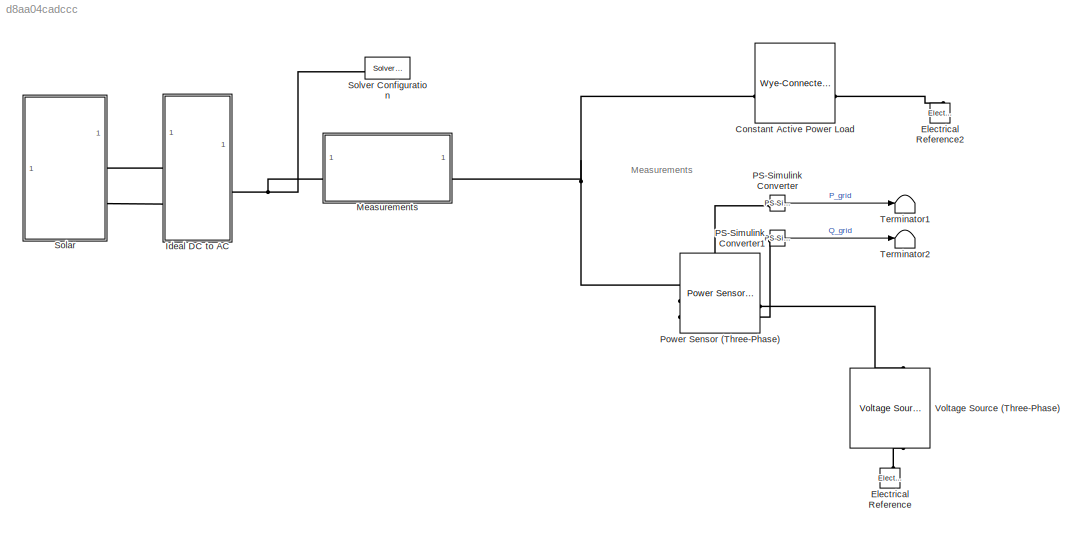
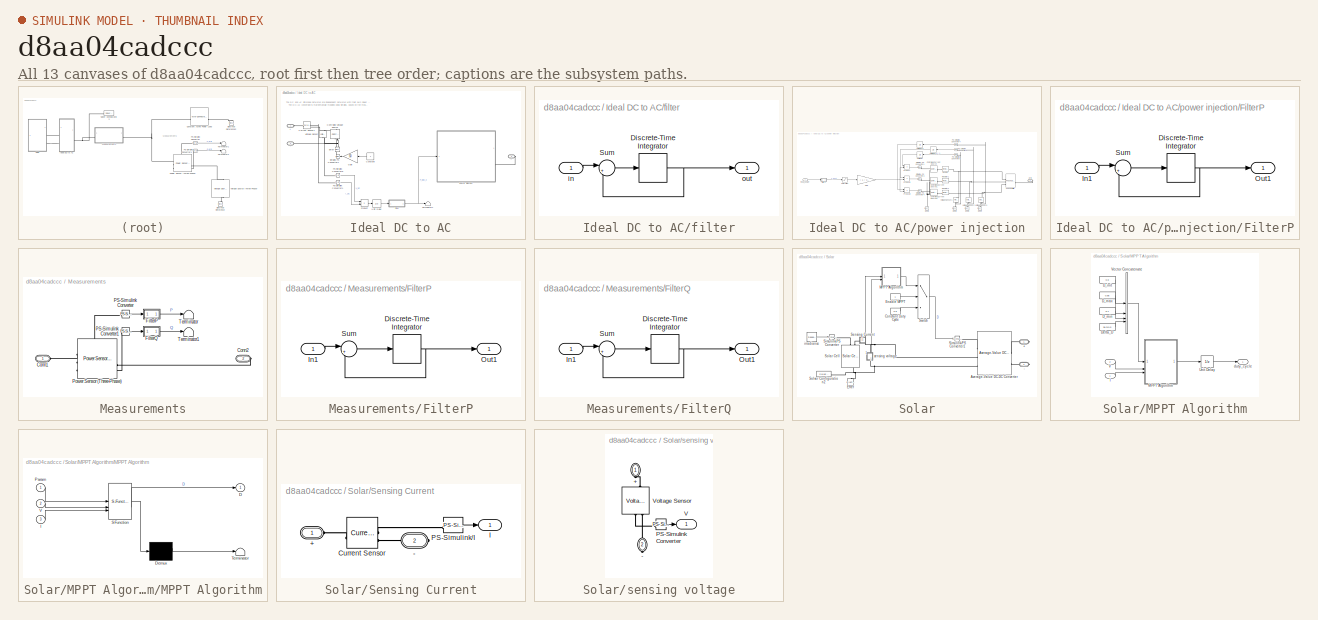
[diagram: thumbnail index - all 13 canvases of the model, root first then tree order]
MODEL slx_d8aa04cadccc
KIND model
CONFIG AbsTol = auto
CONFIG EnableMultiTasking = off
CONFIG FixedStep = auto
CONFIG MaxStep = auto
CONFIG MinStep = auto
CONFIG RelTol = 1e-3
CONFIG SampleTimeConstraint = Unconstrained
CONFIG SolverName = VariableStepAuto
CONFIG StartFcn = learning.simulink.modelCallbacks.startFunction(gcs)
CONFIG StartTime = 0.0
CONFIG StopFcn = learning.simulink.modelCallbacks.stopFunction(gcs);
CONFIG StopTime = 24
WORKSPACE source: mxarray member
WORKSPACE courseObject: object (value not decoded)
BLOCK [Reference] Constant Active Power Load  REF=ee_lib/Passive/RLC Assemblies/Wye-Connected Load
  SourceBlock = ee_lib/Passive/RLC Assemblies/Wye-Connected Load
  SourceType = Wye-Connected Load
BLOCK [Reference] Electrical Reference  REF=fl_lib/Electrical/Electrical Elements/Electrical Reference
  NameLocation = right
  SourceBlock = fl_lib/Electrical/Electrical Elements/Electrical Reference
  SourceType = Electrical Reference
BLOCK [Reference] Electrical Reference2  REF=fl_lib/Electrical/Electrical Elements/Electrical Reference
  NameLocation = right
  SourceBlock = fl_lib/Electrical/Electrical Elements/Electrical Reference
  SourceType = Electrical Reference
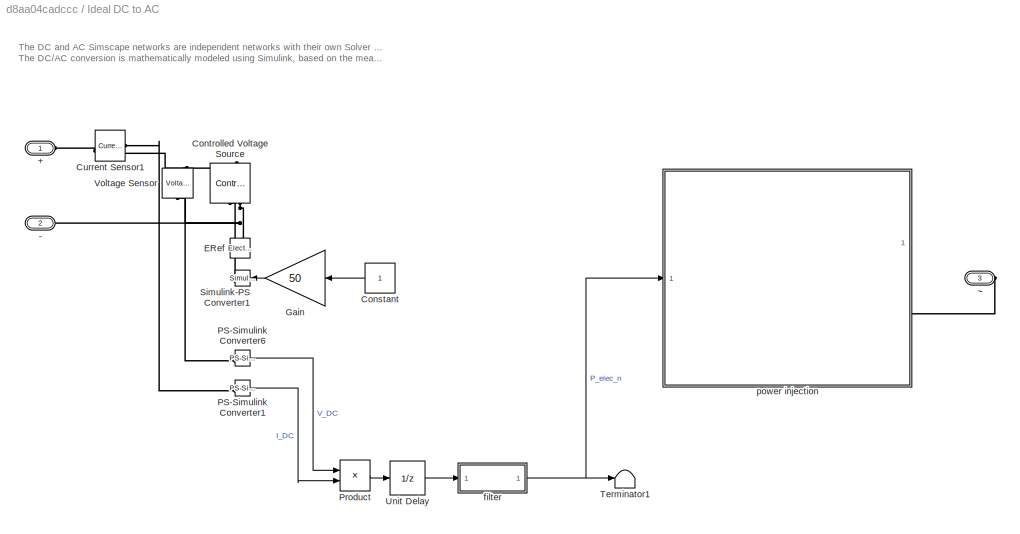
BLOCK [SubSystem] Ideal DC to AC
BLOCK [PMIOPort] Ideal DC to AC/+
  Side = Left
BLOCK [PMIOPort] Ideal DC to AC/-
  Port = 2
  Side = Left
BLOCK [Constant] Ideal DC to AC/Constant
  NameLocation = top
BLOCK [Reference] Ideal DC to AC/Controlled Voltage Source  REF=fl_lib/Electrical/Electrical Sources/Controlled Voltage
Source
  NameLocation = right
  SourceBlock = fl_lib/Electrical/Electrical Sources/Controlled Voltage\nSource
  SourceType = Controlled Voltage\nSource
BLOCK [Reference] Ideal DC to AC/Current Sensor1  REF=fl_lib/Electrical/Electrical Sensors/Current Sensor
  SourceBlock = fl_lib/Electrical/Electrical Sensors/Current Sensor
  SourceType = Current Sensor
BLOCK [Reference] Ideal DC to AC/ERef  REF=fl_lib/Electrical/Electrical Elements/Electrical Reference
  NameLocation = right
  SourceBlock = fl_lib/Electrical/Electrical Elements/Electrical Reference
  SourceType = Electrical Reference
BLOCK [Gain] Ideal DC to AC/Gain
  Gain = 50
BLOCK [Reference] Ideal DC to AC/PS-Simulink Converter1  REF=nesl_utility/PS-Simulink
Converter
  SourceBlock = nesl_utility/PS-Simulink\nConverter
  SourceType = PS-Simulink\nConverter
BLOCK [Reference] Ideal DC to AC/PS-Simulink Converter6  REF=nesl_utility/PS-Simulink
Converter
  SourceBlock = nesl_utility/PS-Simulink\nConverter
  SourceType = PS-Simulink\nConverter
BLOCK [Product] Ideal DC to AC/Product
BLOCK [Reference] Ideal DC to AC/Simulink-PS Converter1  REF=nesl_utility/Simulink-PS
Converter
  NameLocation = top
  SourceBlock = nesl_utility/Simulink-PS\nConverter
  SourceType = Simulink-PS\nConverter
BLOCK [Terminator] Ideal DC to AC/Terminator1
BLOCK [UnitDelay] Ideal DC to AC/Unit Delay
  HasFrameUpgradeWarning = on
  SampleTime = -1
BLOCK [Reference] Ideal DC to AC/Voltage Sensor  REF=fl_lib/Electrical/Electrical Sensors/Voltage Sensor
  NameLocation = right
  SourceBlock = fl_lib/Electrical/Electrical Sensors/Voltage Sensor
  SourceType = Voltage Sensor
BLOCK [SubSystem] Ideal DC to AC/filter
BLOCK [DiscreteIntegrator] Ideal DC to AC/filter/Discrete-Time Integrator
  ICPrevOutput = DiscIntNeverNeededParam
  ICPrevScaledInput = DiscIntNeverNeededParam
  InitialConditionSetting = Auto
  SampleTime = -1
  gainval = 20
BLOCK [Sum] Ideal DC to AC/filter/Sum
  Inputs = |+-
BLOCK [Inport] Ideal DC to AC/filter/in
BLOCK [Outport] Ideal DC to AC/filter/out
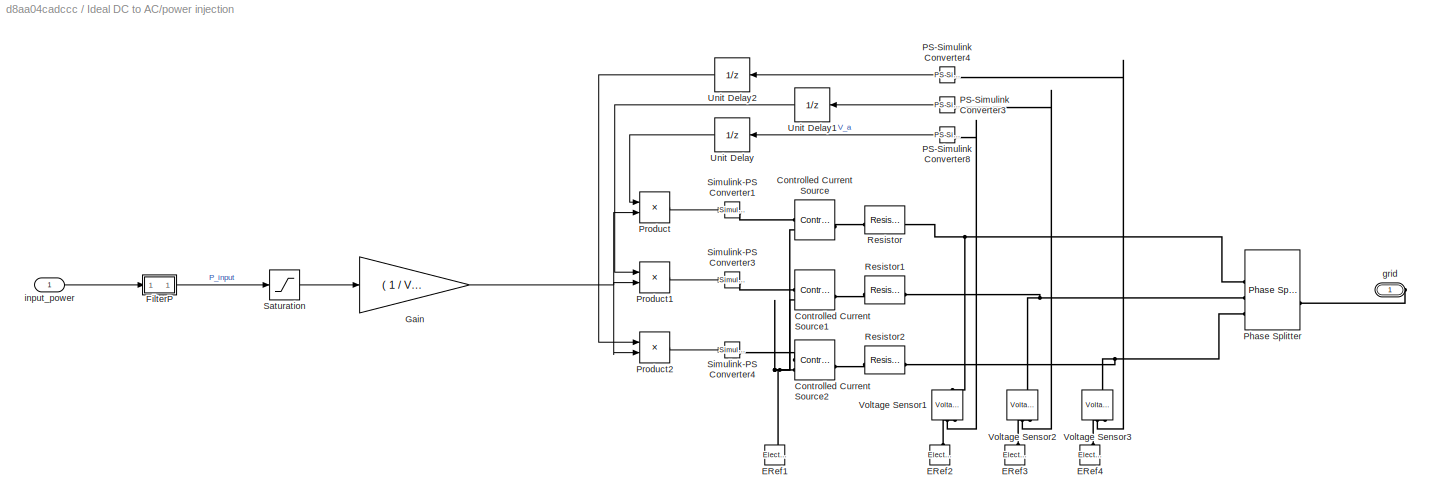
BLOCK [SubSystem] Ideal DC to AC/power injection
BLOCK [Reference] Ideal DC to AC/power injection/Controlled Current Source  REF=fl_lib/Electrical/Electrical Sources/Controlled Current
Source
  SourceBlock = fl_lib/Electrical/Electrical Sources/Controlled Current\nSource
  SourceType = Controlled Current\nSource
BLOCK [Reference] Ideal DC to AC/power injection/Controlled Current Source1  REF=fl_lib/Electrical/Electrical Sources/Controlled Current
Source
  SourceBlock = fl_lib/Electrical/Electrical Sources/Controlled Current\nSource
  SourceType = Controlled Current\nSource
BLOCK [Reference] Ideal DC to AC/power injection/Controlled Current Source2  REF=fl_lib/Electrical/Electrical Sources/Controlled Current
Source
  SourceBlock = fl_lib/Electrical/Electrical Sources/Controlled Current\nSource
  SourceType = Controlled Current\nSource
BLOCK [Reference] Ideal DC to AC/power injection/ERef1  REF=fl_lib/Electrical/Electrical Elements/Electrical Reference
  NameLocation = right
  SourceBlock = fl_lib/Electrical/Electrical Elements/Electrical Reference
  SourceType = Electrical Reference
BLOCK [Reference] Ideal DC to AC/power injection/ERef2  REF=fl_lib/Electrical/Electrical Elements/Electrical Reference
  NameLocation = right
  SourceBlock = fl_lib/Electrical/Electrical Elements/Electrical Reference
  SourceType = Electrical Reference
BLOCK [Reference] Ideal DC to AC/power injection/ERef3  REF=fl_lib/Electrical/Electrical Elements/Electrical Reference
  NameLocation = right
  SourceBlock = fl_lib/Electrical/Electrical Elements/Electrical Reference
  SourceType = Electrical Reference
BLOCK [Reference] Ideal DC to AC/power injection/ERef4  REF=fl_lib/Electrical/Electrical Elements/Electrical Reference
  NameLocation = right
  SourceBlock = fl_lib/Electrical/Electrical Elements/Electrical Reference
  SourceType = Electrical Reference
BLOCK [SubSystem] Ideal DC to AC/power injection/FilterP
BLOCK [DiscreteIntegrator] Ideal DC to AC/power injection/FilterP/Discrete-Time Integrator
  ICPrevOutput = DiscIntNeverNeededParam
  ICPrevScaledInput = DiscIntNeverNeededParam
  InitialConditionSetting = Auto
  SampleTime = -1
  gainval = 20
BLOCK [Inport] Ideal DC to AC/power injection/FilterP/In1
BLOCK [Outport] Ideal DC to AC/power injection/FilterP/Out1
BLOCK [Sum] Ideal DC to AC/power injection/FilterP/Sum
  Inputs = |+-
BLOCK [Gain] Ideal DC to AC/power injection/Gain
  Gain = ( 1 / V_ref ) ^ 2
BLOCK [Reference] Ideal DC to AC/power injection/PS-Simulink Converter3  REF=nesl_utility/PS-Simulink
Converter
  NameLocation = top
  SourceBlock = nesl_utility/PS-Simulink\nConverter
  SourceType = PS-Simulink\nConverter
BLOCK [Reference] Ideal DC to AC/power injection/PS-Simulink Converter4  REF=nesl_utility/PS-Simulink
Converter
  NameLocation = top
  SourceBlock = nesl_utility/PS-Simulink\nConverter
  SourceType = PS-Simulink\nConverter
BLOCK [Reference] Ideal DC to AC/power injection/PS-Simulink Converter8  REF=nesl_utility/PS-Simulink
Converter
  NameLocation = top
  SourceBlock = nesl_utility/PS-Simulink\nConverter
  SourceType = PS-Simulink\nConverter
BLOCK [Reference] Ideal DC to AC/power injection/Phase Splitter  REF=ee_lib/Connectors &
References/Phase Splitter
  SourceBlock = ee_lib/Connectors &\nReferences/Phase Splitter
  SourceType = Phase Splitter
BLOCK [Product] Ideal DC to AC/power injection/Product
BLOCK [Product] Ideal DC to AC/power injection/Product1
BLOCK [Product] Ideal DC to AC/power injection/Product2
BLOCK [Reference] Ideal DC to AC/power injection/Resistor  REF=fl_lib/Electrical/Electrical Elements/Resistor
  SourceBlock = fl_lib/Electrical/Electrical Elements/Resistor
  SourceType = Resistor
BLOCK [Reference] Ideal DC to AC/power injection/Resistor1  REF=fl_lib/Electrical/Electrical Elements/Resistor
  SourceBlock = fl_lib/Electrical/Electrical Elements/Resistor
  SourceType = Resistor
BLOCK [Reference] Ideal DC to AC/power injection/Resistor2  REF=fl_lib/Electrical/Electrical Elements/Resistor
  SourceBlock = fl_lib/Electrical/Electrical Elements/Resistor
  SourceType = Resistor
BLOCK [Saturate] Ideal DC to AC/power injection/Saturation
  LowerLimit = 0
  UpperLimit = P_nom
BLOCK [Reference] Ideal DC to AC/power injection/Simulink-PS Converter1  REF=nesl_utility/Simulink-PS
Converter
  SourceBlock = nesl_utility/Simulink-PS\nConverter
  SourceType = Simulink-PS\nConverter
BLOCK [Reference] Ideal DC to AC/power injection/Simulink-PS Converter3  REF=nesl_utility/Simulink-PS
Converter
  SourceBlock = nesl_utility/Simulink-PS\nConverter
  SourceType = Simulink-PS\nConverter
BLOCK [Reference] Ideal DC to AC/power injection/Simulink-PS Converter4  REF=nesl_utility/Simulink-PS
Converter
  SourceBlock = nesl_utility/Simulink-PS\nConverter
  SourceType = Simulink-PS\nConverter
BLOCK [UnitDelay] Ideal DC to AC/power injection/Unit Delay
  HasFrameUpgradeWarning = on
  SampleTime = -1
BLOCK [UnitDelay] Ideal DC to AC/power injection/Unit Delay1
  HasFrameUpgradeWarning = on
  SampleTime = -1
BLOCK [UnitDelay] Ideal DC to AC/power injection/Unit Delay2
  HasFrameUpgradeWarning = on
  SampleTime = -1
BLOCK [Reference] Ideal DC to AC/power injection/Voltage Sensor1  REF=fl_lib/Electrical/Electrical Sensors/Voltage Sensor
  NameLocation = right
  SourceBlock = fl_lib/Electrical/Electrical Sensors/Voltage Sensor
  SourceType = Voltage Sensor
BLOCK [Reference] Ideal DC to AC/power injection/Voltage Sensor2  REF=fl_lib/Electrical/Electrical Sensors/Voltage Sensor
  NameLocation = right
  SourceBlock = fl_lib/Electrical/Electrical Sensors/Voltage Sensor
  SourceType = Voltage Sensor
BLOCK [Reference] Ideal DC to AC/power injection/Voltage Sensor3  REF=fl_lib/Electrical/Electrical Sensors/Voltage Sensor
  NameLocation = right
  SourceBlock = fl_lib/Electrical/Electrical Sensors/Voltage Sensor
  SourceType = Voltage Sensor
BLOCK [PMIOPort] Ideal DC to AC/power injection/grid
  Side = Right
BLOCK [Inport] Ideal DC to AC/power injection/input_power
BLOCK [PMIOPort] Ideal DC to AC/~
  Port = 3
  Side = Right
BLOCK [SubSystem] Measurements
BLOCK [PMIOPort] Measurements/Conn1
  Side = Left
BLOCK [PMIOPort] Measurements/Conn2
  Port = 2
  Side = Right
BLOCK [SubSystem] Measurements/FilterP
BLOCK [DiscreteIntegrator] Measurements/FilterP/Discrete-Time Integrator
  ICPrevOutput = DiscIntNeverNeededParam
  ICPrevScaledInput = DiscIntNeverNeededParam
  InitialConditionSetting = Auto
  SampleTime = -1
  gainval = 20
BLOCK [Inport] Measurements/FilterP/In1
BLOCK [Outport] Measurements/FilterP/Out1
BLOCK [Sum] Measurements/FilterP/Sum
  Inputs = |+-
BLOCK [SubSystem] Measurements/FilterQ
BLOCK [DiscreteIntegrator] Measurements/FilterQ/Discrete-Time Integrator
  ICPrevOutput = DiscIntNeverNeededParam
  ICPrevScaledInput = DiscIntNeverNeededParam
  InitialConditionSetting = Auto
  SampleTime = -1
  gainval = 20
BLOCK [Inport] Measurements/FilterQ/In1
BLOCK [Outport] Measurements/FilterQ/Out1
BLOCK [Sum] Measurements/FilterQ/Sum
  Inputs = |+-
BLOCK [Reference] Measurements/PS-Simulink Converter  REF=nesl_utility/PS-Simulink
Converter
  SourceBlock = nesl_utility/PS-Simulink\nConverter
  SourceType = PS-Simulink\nConverter
BLOCK [Reference] Measurements/PS-Simulink Converter1  REF=nesl_utility/PS-Simulink
Converter
  SourceBlock = nesl_utility/PS-Simulink\nConverter
  SourceType = PS-Simulink\nConverter
BLOCK [Reference] Measurements/Power Sensor (Three-Phase)  REF=ee_lib/Sensors &
Transducers/Power Sensor
(Three-Phase)
  SourceBlock = ee_lib/Sensors &\nTransducers/Power Sensor\n(Three-Phase)
  SourceType = Power Sensor\n(Three-Phase)
BLOCK [Terminator] Measurements/Terminator
BLOCK [Terminator] Measurements/Terminator1
BLOCK [Reference] PS-Simulink Converter  REF=nesl_utility/PS-Simulink
Converter
  SourceBlock = nesl_utility/PS-Simulink\nConverter
  SourceType = PS-Simulink\nConverter
BLOCK [Reference] PS-Simulink Converter1  REF=nesl_utility/PS-Simulink
Converter
  SourceBlock = nesl_utility/PS-Simulink\nConverter
  SourceType = PS-Simulink\nConverter
BLOCK [Reference] Power Sensor (Three-Phase)  REF=ee_lib/Sensors &
Transducers/Power Sensor
(Three-Phase)
  SourceBlock = ee_lib/Sensors &\nTransducers/Power Sensor\n(Three-Phase)
  SourceType = Power Sensor\n(Three-Phase)
BLOCK [SubSystem] Solar
BLOCK [PMIOPort] Solar/+
  Side = Right
BLOCK [PMIOPort] Solar/-
  Port = 2
  Side = Right
BLOCK [Reference] Solar/Average-Value DC-DC Converter  REF=ee_lib/Semiconductors &
Converters/Converters/Average-Value DC-DC
Converter
  SourceBlock = ee_lib/Semiconductors &\nConverters/Converters/Average-Value DC-DC\nConverter
  SourceType = Average-Value DC-DC\nConverter
BLOCK [Constant] Solar/Constant Duty Cycle
  Value = 0.8
BLOCK [Reference] Solar/ERef  REF=fl_lib/Electrical/Electrical Elements/Electrical Reference
  NameLocation = right
  SourceBlock = fl_lib/Electrical/Electrical Elements/Electrical Reference
  SourceType = Electrical Reference
BLOCK [Constant] Solar/Enable MPPT
BLOCK [SubSystem] Solar/MPPT Algorithm
BLOCK [Constant] Solar/MPPT Algorithm/D_init
  Value = 0.8
BLOCK [Constant] Solar/MPPT Algorithm/D_max
  Value = 0.85
BLOCK [Constant] Solar/MPPT Algorithm/D_min
  Value = 0.1
BLOCK [Constant] Solar/MPPT Algorithm/Delta_D
  Value = 3e-3*0.5
BLOCK [Inport] Solar/MPPT Algorithm/I
BLOCK [SubSystem] Solar/MPPT Algorithm/MPPT Algorithm
  ErrorFcn = Stateflow.Translate.translate
  PermitHierarchicalResolution = ExplicitOnly
  SFBlockType = MATLAB Function
  SystemSampleTime = Ts
  TreatAsGroupedWhenPropagatingVariantConditions = off
BLOCK [Demux] Solar/MPPT Algorithm/MPPT Algorithm/ Demux 
  Outputs = 1
BLOCK [S-Function] Solar/MPPT Algorithm/MPPT Algorithm/ SFunction 
  EnableBusSupport = on
  FunctionName = sf_sfun
  PortCounts = [3 2]
  SFcnIsStateOwnerBlock = off
  SFunctionDeploymentMode = off
  Tag = Stateflow S-Function 1
BLOCK [Terminator] Solar/MPPT Algorithm/MPPT Algorithm/ Terminator 
BLOCK [Outport] Solar/MPPT Algorithm/MPPT Algorithm/D
  VectorParamsAs1DForOutWhenUnconnected = off
BLOCK [Inport] Solar/MPPT Algorithm/MPPT Algorithm/I
  Port = 3
BLOCK [Inport] Solar/MPPT Algorithm/MPPT Algorithm/Param
BLOCK [Inport] Solar/MPPT Algorithm/MPPT Algorithm/V
  Port = 2
BLOCK [UnitDelay] Solar/MPPT Algorithm/Unit Delay
  HasFrameUpgradeWarning = on
  InitialCondition = 0.85
  SampleTime = -1
BLOCK [Inport] Solar/MPPT Algorithm/V
  Port = 2
BLOCK [Concatenate] Solar/MPPT Algorithm/Vector Concatenate
  NumInputs = 4
BLOCK [Outport] Solar/MPPT Algorithm/duty_cycle
BLOCK [SubSystem] Solar/Sensing Current
  PortSchema = {"entries":[{"content":{"sides":[{"content":{"connectorIds":["LConn1"]},"type":"ConnectorPlacement.EquallySpacedRectSide","uuid":"08eaf192-3836-4d70-9f6a-c3aee0977ea6"},{"content":{"connectorIds":["RConn1"],"side":"RIGHT"},"type":"ConnectorPlacement.EquallySpacedRectSide","uuid":"69615d36-c1bf-4d31-b3e4-77c73286e7c7"},{"content":{"connectorIds":["Out1"],"side":"TOP"},"type":"ConnectorPlacement.Equ...<+251ch>
BLOCK [PMIOPort] Solar/Sensing Current/+
  Side = Left
BLOCK [PMIOPort] Solar/Sensing Current/-
  Port = 2
  Side = Right
BLOCK [Reference] Solar/Sensing Current/Current Sensor  REF=fl_lib/Electrical/Electrical Sensors/Current Sensor
  SourceBlock = fl_lib/Electrical/Electrical Sensors/Current Sensor
  SourceType = Current Sensor
BLOCK [Outport] Solar/Sensing Current/I
BLOCK [Reference] Solar/Sensing Current/PS-Simulink//I  REF=nesl_utility/PS-Simulink
Converter
  SourceBlock = nesl_utility/PS-Simulink\nConverter
  SourceType = PS-Simulink\nConverter
BLOCK [Reference] Solar/Simulink-PS Converter  REF=nesl_utility/Simulink-PS
Converter
  SourceBlock = nesl_utility/Simulink-PS\nConverter
  SourceType = Simulink-PS\nConverter
BLOCK [Reference] Solar/Simulink-PS Converter1  REF=nesl_utility/Simulink-PS
Converter
  SourceBlock = nesl_utility/Simulink-PS\nConverter
  SourceType = Simulink-PS\nConverter
BLOCK [Reference] Solar/Solar Cell  REF=ee_lib/Sources/Solar Cell
  NameLocation = left
  SourceBlock = ee_lib/Sources/Solar Cell
  SourceType = Solar Cell
BLOCK [Reference] Solar/Solver Configuration2  REF=nesl_utility/Solver
Configuration
  SourceBlock = nesl_utility/Solver\nConfiguration
  SourceType = Solver\nConfiguration
BLOCK [Switch] Solar/Switch
  Criteria = u2 > Threshold
  InputSameDT = off
  SaturateOnIntegerOverflow = off
BLOCK [Reference] Solar/irradiance   REF=simulink/Sources/Repeating
Sequence
Interpolated
  NameLocation = top
  SourceBlock = simulink/Sources/Repeating\nSequence\nInterpolated
  SourceType = Repeating Sequence Interpolated
BLOCK [SubSystem] Solar/sensing voltage
  NameLocation = left
  PortSchema = {"entries":[{"content":{"sides":[{"content":{"connectorIds":["LConn1"]},"type":"ConnectorPlacement.EquallySpacedRectSide","uuid":"08eaf192-3836-4d70-9f6a-c3aee0977ea6"},{"content":{"connectorIds":["RConn1"],"side":"RIGHT"},"type":"ConnectorPlacement.EquallySpacedRectSide","uuid":"69615d36-c1bf-4d31-b3e4-77c73286e7c7"},{"content":{"connectorIds":[],"side":"TOP"},"type":"ConnectorPlacement.EquallySp...<+395ch>
BLOCK [PMIOPort] Solar/sensing voltage/+
  NameLocation = left
  Side = Left
BLOCK [PMIOPort] Solar/sensing voltage/-
  NameLocation = left
  Port = 2
  Side = Right
BLOCK [Reference] Solar/sensing voltage/PS-Simulink Converter  REF=nesl_utility/PS-Simulink
Converter
  SourceBlock = nesl_utility/PS-Simulink\nConverter
  SourceType = PS-Simulink\nConverter
BLOCK [Outport] Solar/sensing voltage/V
BLOCK [Reference] Solar/sensing voltage/Voltage Sensor  REF=fl_lib/Electrical/Electrical Sensors/Voltage Sensor
  NameLocation = right
  SourceBlock = fl_lib/Electrical/Electrical Sensors/Voltage Sensor
  SourceType = Voltage Sensor
BLOCK [Reference] Solver Configuration  REF=nesl_utility/Solver
Configuration
  SourceBlock = nesl_utility/Solver\nConfiguration
  SourceType = Solver\nConfiguration
BLOCK [Terminator] Terminator1
BLOCK [Terminator] Terminator2
BLOCK [Reference] Voltage Source (Three-Phase)  REF=ee_lib/Sources/Voltage
Source
(Three-Phase)
  NameLocation = right
  SourceBlock = ee_lib/Sources/Voltage\nSource\n(Three-Phase)
  SourceType = Voltage\nSource\n(Three-Phase)
ANNOTATION (root): Measurements
ANNOTATION Ideal DC to AC: The DC and AC Simscape networks are independent networks with their own Solver Configuration blocks. The DC/AC conversion is mathematically modeled using Simulink, based on the measured Simscape values.
LINE Ideal DC to AC/Constant:1 -> Ideal DC to AC/Gain:1
LINE Ideal DC to AC/Gain:1 -> Ideal DC to AC/Simulink-PS Converter1:1
LINE Ideal DC to AC/PS-Simulink Converter1:1 -> Ideal DC to AC/Product:2
LINE Ideal DC to AC/PS-Simulink Converter6:1 -> Ideal DC to AC/Product:1
LINE Ideal DC to AC/Product:1 -> Ideal DC to AC/Unit Delay:1
LINE Ideal DC to AC/Unit Delay:1 -> Ideal DC to AC/filter:1
NET Ideal DC to AC/filter/Discrete-Time Integrator:1 -> Ideal DC to AC/filter/Sum:2, Ideal DC to AC/filter/out:1
LINE Ideal DC to AC/filter/Sum:1 -> Ideal DC to AC/filter/Discrete-Time Integrator:1
LINE Ideal DC to AC/filter/in:1 -> Ideal DC to AC/filter/Sum:1
NET Ideal DC to AC/filter:1 -> Ideal DC to AC/Terminator1:1, Ideal DC to AC/power injection:1
NET Ideal DC to AC/power injection/FilterP/Discrete-Time Integrator:1 -> Ideal DC to AC/power injection/FilterP/Out1:1, Ideal DC to AC/power injection/FilterP/Sum:2
LINE Ideal DC to AC/power injection/FilterP/In1:1 -> Ideal DC to AC/power injection/FilterP/Sum:1
LINE Ideal DC to AC/power injection/FilterP/Sum:1 -> Ideal DC to AC/power injection/FilterP/Discrete-Time Integrator:1
LINE Ideal DC to AC/power injection/FilterP:1 -> Ideal DC to AC/power injection/Saturation:1
NET Ideal DC to AC/power injection/Gain:1 -> Ideal DC to AC/power injection/Product1:2, Ideal DC to AC/power injection/Product2:2, Ideal DC to AC/power injection/Product:2
LINE Ideal DC to AC/power injection/PS-Simulink Converter3:1 -> Ideal DC to AC/power injection/Unit Delay1:1
LINE Ideal DC to AC/power injection/PS-Simulink Converter4:1 -> Ideal DC to AC/power injection/Unit Delay2:1
LINE Ideal DC to AC/power injection/PS-Simulink Converter8:1 -> Ideal DC to AC/power injection/Unit Delay:1
LINE Ideal DC to AC/power injection/Product1:1 -> Ideal DC to AC/power injection/Simulink-PS Converter3:1
LINE Ideal DC to AC/power injection/Product2:1 -> Ideal DC to AC/power injection/Simulink-PS Converter4:1
LINE Ideal DC to AC/power injection/Product:1 -> Ideal DC to AC/power injection/Simulink-PS Converter1:1
LINE Ideal DC to AC/power injection/Saturation:1 -> Ideal DC to AC/power injection/Gain:1
LINE Ideal DC to AC/power injection/Unit Delay1:1 -> Ideal DC to AC/power injection/Product1:1
LINE Ideal DC to AC/power injection/Unit Delay2:1 -> Ideal DC to AC/power injection/Product2:1
LINE Ideal DC to AC/power injection/Unit Delay:1 -> Ideal DC to AC/power injection/Product:1
LINE Ideal DC to AC/power injection/input_power:1 -> Ideal DC to AC/power injection/FilterP:1
NET Measurements/FilterP/Discrete-Time Integrator:1 -> Measurements/FilterP/Out1:1, Measurements/FilterP/Sum:2
LINE Measurements/FilterP/In1:1 -> Measurements/FilterP/Sum:1
LINE Measurements/FilterP/Sum:1 -> Measurements/FilterP/Discrete-Time Integrator:1
LINE Measurements/FilterP:1 -> Measurements/Terminator:1
NET Measurements/FilterQ/Discrete-Time Integrator:1 -> Measurements/FilterQ/Out1:1, Measurements/FilterQ/Sum:2
LINE Measurements/FilterQ/In1:1 -> Measurements/FilterQ/Sum:1
LINE Measurements/FilterQ/Sum:1 -> Measurements/FilterQ/Discrete-Time Integrator:1
LINE Measurements/FilterQ:1 -> Measurements/Terminator1:1
LINE Measurements/PS-Simulink Converter1:1 -> Measurements/FilterQ:1
LINE Measurements/PS-Simulink Converter:1 -> Measurements/FilterP:1
LINE PS-Simulink Converter1:1 -> Terminator2:1
LINE PS-Simulink Converter:1 -> Terminator1:1
LINE Solar/Constant Duty Cycle:1 -> Solar/Switch:3
LINE Solar/Enable MPPT:1 -> Solar/Switch:2
LINE Solar/MPPT Algorithm/D_init:1 -> Solar/MPPT Algorithm/Vector Concatenate:1
LINE Solar/MPPT Algorithm/D_max:1 -> Solar/MPPT Algorithm/Vector Concatenate:2
LINE Solar/MPPT Algorithm/D_min:1 -> Solar/MPPT Algorithm/Vector Concatenate:3
LINE Solar/MPPT Algorithm/Delta_D:1 -> Solar/MPPT Algorithm/Vector Concatenate:4
LINE Solar/MPPT Algorithm/I:1 -> Solar/MPPT Algorithm/MPPT Algorithm:3
LINE Solar/MPPT Algorithm/MPPT Algorithm:1 -> Solar/MPPT Algorithm/Unit Delay:1
LINE Solar/MPPT Algorithm/Unit Delay:1 -> Solar/MPPT Algorithm/duty_cycle:1
LINE Solar/MPPT Algorithm/V:1 -> Solar/MPPT Algorithm/MPPT Algorithm:2
LINE Solar/MPPT Algorithm/Vector Concatenate:1 -> Solar/MPPT Algorithm/MPPT Algorithm:1
LINE Solar/MPPT Algorithm:1 -> Solar/Switch:1
LINE Solar/Sensing Current/PS-Simulink//I:1 -> Solar/Sensing Current/I:1
LINE Solar/Sensing Current:1 -> Solar/MPPT Algorithm:1
LINE Solar/Switch:1 -> Solar/Simulink-PS Converter1:1
LINE Solar/irradiance :1 -> Solar/Simulink-PS Converter:1
LINE Solar/sensing voltage/PS-Simulink Converter:1 -> Solar/sensing voltage/V:1
LINE Solar/sensing voltage:1 -> Solar/MPPT Algorithm:2
PNET net1: Constant Active Power Load:LConn1 -- Measurements:RConn1 -- Power Sensor (Three-Phase):LConn1
PLINE Constant Active Power Load:RConn1 -- Electrical Reference2:LConn1
PLINE Electrical Reference:LConn1 -- Voltage Source (Three-Phase):LConn1
PLINE Ideal DC to AC/+:RConn1 -- Ideal DC to AC/Current Sensor1:LConn1
PNET net2: Ideal DC to AC/-:RConn1 -- Ideal DC to AC/Controlled Voltage Source:RConn2 -- Ideal DC to AC/ERef:LConn1 -- Ideal DC to AC/Voltage Sensor:RConn2
PNET net3: Ideal DC to AC/Controlled Voltage Source:LConn1 -- Ideal DC to AC/Current Sensor1:RConn2 -- Ideal DC to AC/Voltage Sensor:LConn1
PLINE Ideal DC to AC/Controlled Voltage Source:RConn1 -- Ideal DC to AC/Simulink-PS Converter1:RConn1
PLINE Ideal DC to AC/Current Sensor1:RConn1 -- Ideal DC to AC/PS-Simulink Converter1:LConn1
PLINE Ideal DC to AC/PS-Simulink Converter6:LConn1 -- Ideal DC to AC/Voltage Sensor:RConn1
PLINE Ideal DC to AC/power injection/Controlled Current Source1:LConn1 -- Ideal DC to AC/power injection/Resistor1:LConn1
PLINE Ideal DC to AC/power injection/Controlled Current Source1:RConn1 -- Ideal DC to AC/power injection/Simulink-PS Converter3:RConn1
PNET net4: Ideal DC to AC/power injection/Controlled Current Source1:RConn2 -- Ideal DC to AC/power injection/Controlled Current Source2:RConn2 -- Ideal DC to AC/power injection/Controlled Current Source:RConn2 -- Ideal DC to AC/power injection/ERef1:LConn1
PLINE Ideal DC to AC/power injection/Controlled Current Source2:LConn1 -- Ideal DC to AC/power injection/Resistor2:LConn1
PLINE Ideal DC to AC/power injection/Controlled Current Source2:RConn1 -- Ideal DC to AC/power injection/Simulink-PS Converter4:RConn1
PLINE Ideal DC to AC/power injection/Controlled Current Source:LConn1 -- Ideal DC to AC/power injection/Resistor:LConn1
PLINE Ideal DC to AC/power injection/Controlled Current Source:RConn1 -- Ideal DC to AC/power injection/Simulink-PS Converter1:RConn1
PLINE Ideal DC to AC/power injection/ERef2:LConn1 -- Ideal DC to AC/power injection/Voltage Sensor1:RConn2
PLINE Ideal DC to AC/power injection/ERef3:LConn1 -- Ideal DC to AC/power injection/Voltage Sensor2:RConn2
PLINE Ideal DC to AC/power injection/ERef4:LConn1 -- Ideal DC to AC/power injection/Voltage Sensor3:RConn2
PLINE Ideal DC to AC/power injection/PS-Simulink Converter3:LConn1 -- Ideal DC to AC/power injection/Voltage Sensor2:RConn1
PLINE Ideal DC to AC/power injection/PS-Simulink Converter4:LConn1 -- Ideal DC to AC/power injection/Voltage Sensor3:RConn1
PLINE Ideal DC to AC/power injection/PS-Simulink Converter8:LConn1 -- Ideal DC to AC/power injection/Voltage Sensor1:RConn1
PLINE Ideal DC to AC/power injection/Phase Splitter:LConn1 -- Ideal DC to AC/power injection/grid:RConn1
PNET net5: Ideal DC to AC/power injection/Phase Splitter:RConn1 -- Ideal DC to AC/power injection/Resistor:RConn1 -- Ideal DC to AC/power injection/Voltage Sensor1:LConn1
PNET net6: Ideal DC to AC/power injection/Phase Splitter:RConn2 -- Ideal DC to AC/power injection/Resistor1:RConn1 -- Ideal DC to AC/power injection/Voltage Sensor2:LConn1
PNET net7: Ideal DC to AC/power injection/Phase Splitter:RConn3 -- Ideal DC to AC/power injection/Resistor2:RConn1 -- Ideal DC to AC/power injection/Voltage Sensor3:LConn1
PLINE Ideal DC to AC/power injection:RConn1 -- Ideal DC to AC/~:RConn1
PLINE Ideal DC to AC:LConn1 -- Solar:RConn1
PLINE Ideal DC to AC:LConn2 -- Solar:RConn2
PNET net8: Ideal DC to AC:RConn1 -- Measurements:LConn1 -- Solver Configuration:RConn1
PLINE Measurements/Conn1:RConn1 -- Measurements/Power Sensor (Three-Phase):LConn1
PLINE Measurements/Conn2:RConn1 -- Measurements/Power Sensor (Three-Phase):RConn1
PLINE Measurements/PS-Simulink Converter1:LConn1 -- Measurements/Power Sensor (Three-Phase):LConn3
PLINE Measurements/PS-Simulink Converter:LConn1 -- Measurements/Power Sensor (Three-Phase):LConn2
PLINE PS-Simulink Converter1:LConn1 -- Power Sensor (Three-Phase):LConn3
PLINE PS-Simulink Converter:LConn1 -- Power Sensor (Three-Phase):LConn2
PLINE Power Sensor (Three-Phase):RConn1 -- Voltage Source (Three-Phase):RConn1
PLINE Solar/+:RConn1 -- Solar/Average-Value DC-DC Converter:RConn1
PLINE Solar/-:RConn1 -- Solar/Average-Value DC-DC Converter:RConn2
PLINE Solar/Average-Value DC-DC Converter:LConn1 -- Solar/Simulink-PS Converter1:RConn1
PNET net9: Solar/Average-Value DC-DC Converter:LConn2 -- Solar/Sensing Current:RConn1 -- Solar/sensing voltage:LConn1
PNET net10: Solar/Average-Value DC-DC Converter:LConn3 -- Solar/ERef:LConn1 -- Solar/Solar Cell:RConn1 -- Solar/Solver Configuration2:RConn1 -- Solar/sensing voltage:RConn1
PLINE Solar/Sensing Current/+:RConn1 -- Solar/Sensing Current/Current Sensor:LConn1
PLINE Solar/Sensing Current/-:RConn1 -- Solar/Sensing Current/Current Sensor:RConn2
PLINE Solar/Sensing Current/Current Sensor:RConn1 -- Solar/Sensing Current/PS-Simulink//I:LConn1
PLINE Solar/Sensing Current:LConn1 -- Solar/Solar Cell:LConn2
PLINE Solar/Simulink-PS Converter:RConn1 -- Solar/Solar Cell:LConn1
PLINE Solar/sensing voltage/+:RConn1 -- Solar/sensing voltage/Voltage Sensor:LConn1
PLINE Solar/sensing voltage/-:RConn1 -- Solar/sensing voltage/Voltage Sensor:RConn2
PLINE Solar/sensing voltage/PS-Simulink Converter:LConn1 -- Solar/sensing voltage/Voltage Sensor:RConn1
note: NET lines group one-source signal fan-out (src -> all destinations, sorted); 1:1 wires keep LINE; PNET lines group multi-terminal physical nets as a canonical sorted terminal list (undirected conserving connections); 2-terminal nets keep the pairwise PLINE form
CHART Solar/MPPT Algorithm/MPPT Algorithm states=1 transitions=1
  STATE_LABEL 'eML_blk_kernel()'
  STATE_LABEL 'SCRIPT:\nfunction D  = PandO(Param, V, I)\n\n% MPPT controller based on the Perturb & Observe algorithm.\n\n% D output = Duty cycle of the boost converter (value between 0 and 1)\n%\n% V input = PV array terminal voltage (V)\n% I input = PV array current (A)\n%\n% Param input:\nDinit = Param(1);  %Initial value for D output\nDmax = Param(2);   %Maximum value for D\nDmin = Param(3);   %Minimum value for D\ndelta...<+641ch>'
CHART  states=0 transitions=0
